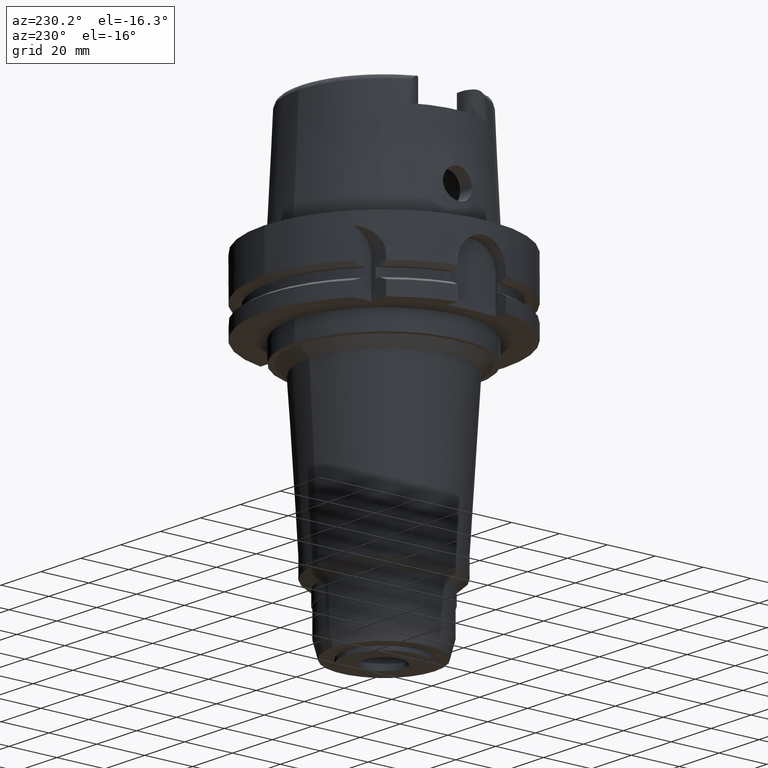
[diagram: clean part render]
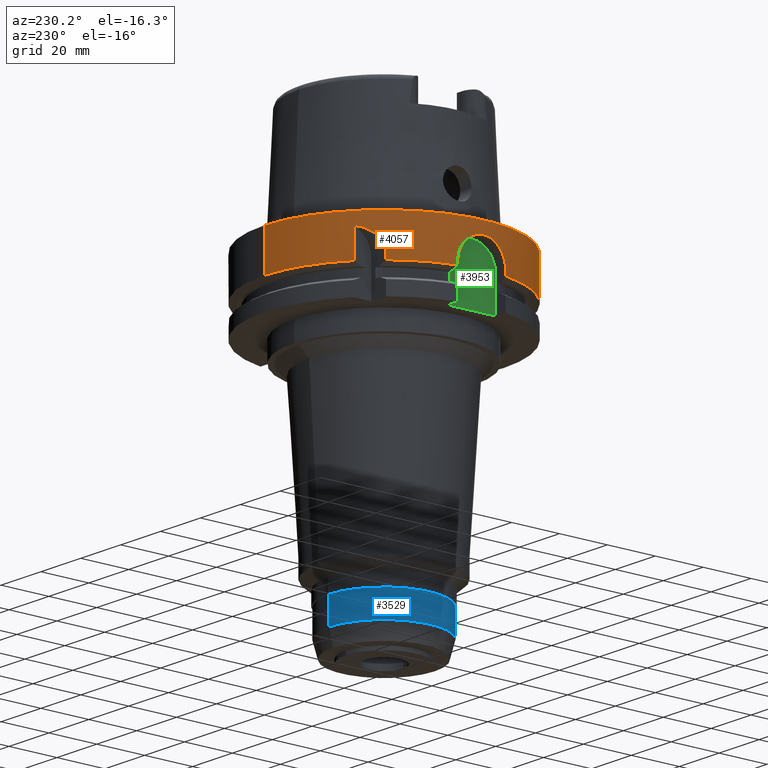
[diagram: same view with three faces highlighted in distinct colors, each labeled with its STEP entity id]
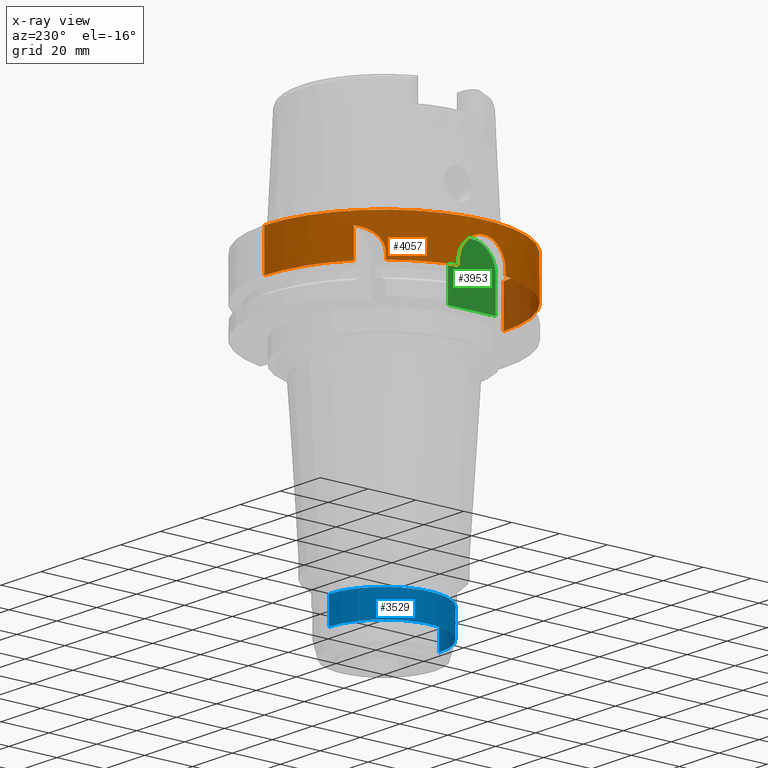
[diagram: x-ray of the same camera — body ghosted, the three highlighted faces saturated]
A machine part, auxiliary view with three faces highlighted in distinct colors.
The next image is the same camera in x-ray (body ghosted, the three faces saturated) — at least one of them is partly hidden behind the body in this view.
Their STEP definitions:

[orange] entity #4057 — the highlighted cylindrical surface (partial cylindrical patch) has radius 50 mm, axis along (0, 0, 1).
#1443=CARTESIAN_POINT('',(-3.150000355959E1,3.882975374305E1,
-1.675239179145E1));
#1628=CARTESIAN_POINT('',(-3.882975730068E1,3.149999917413E1,
-1.675240773890E1));
#1652=DIRECTION('',(-3.028823767049E-7,-2.457085509676E-7,-9.999999999999E-1));
#1653=VECTOR('',#1652,1.175239179145E1);
#1654=CARTESIAN_POINT('',(-3.15E1,3.882975663071E1,-5.000000000003E0));
#1655=LINE('',#1654,#1653);
#1659=DIRECTION('',(0.E0,2.969006079282E-14,-1.E0));
#1660=VECTOR('',#1659,1.675240473581E1);
#1661=CARTESIAN_POINT('',(0.E0,-5.E1,2.463214817302E-13));
#1662=LINE('',#1661,#1660);
#1666=DIRECTION('',(3.933032361779E-13,-2.534170336198E-14,1.E0));
#1667=VECTOR('',#1666,1.752404735809E0);
#1668=CARTESIAN_POINT('',(-4.898979485566E1,-1.E1,-1.675240473581E1));
#1669=LINE('',#1668,#1667);
#1673=DIRECTION('',(-4.014125812538E-13,-2.635537149646E-14,-1.E0));
#1674=VECTOR('',#1673,1.752404735809E0);
#1675=CARTESIAN_POINT('',(-4.898979485566E1,1.E1,-1.5E1));
#1676=LINE('',#1675,#1674);
#1680=DIRECTION('',(3.166955095345E-7,3.903884141555E-7,9.999999999999E-1));
#1681=VECTOR('',#1680,2.115509879686E0);
#1682=CARTESIAN_POINT('',(-3.882975730068E1,3.149999917413E1,
-1.675240773890E1));
#1683=LINE('',#1682,#1681);
#1687=CARTESIAN_POINT('',(-3.882975663071E1,3.15E1,-1.463689785921E1));
#1688=CARTESIAN_POINT('',(-3.882975663071E1,3.15E1,-1.433064616803E1));
#1689=CARTESIAN_POINT('',(-3.880705422976E1,3.152801625389E1,
-1.372017333441E1));
#1690=CARTESIAN_POINT('',(-3.870428885498E1,3.165427416487E1,
-1.280789796632E1));
#1691=CARTESIAN_POINT('',(-3.853135160626E1,3.186487466080E1,
-1.190702947007E1));
#1692=CARTESIAN_POINT('',(-3.828481064571E1,3.216112139059E1,
-1.102040384079E1));
#1693=CARTESIAN_POINT('',(-3.796154875255E1,3.254265071697E1,
-1.015735258719E1));
#1694=CARTESIAN_POINT('',(-3.755549775618E1,3.301119515243E1,
-9.321662301873E0));
#1695=CARTESIAN_POINT('',(-3.705885492166E1,3.356872838146E1,
-8.519828888380E0));
#1696=CARTESIAN_POINT('',(-3.646394592804E1,3.421519580382E1,
-7.761523281615E0));
#1697=CARTESIAN_POINT('',(-3.575809827878E1,3.495362824472E1,
-7.053893448163E0));
#1698=CARTESIAN_POINT('',(-3.493062109823E1,3.578229936867E1,
-6.409707493797E0));
#1699=CARTESIAN_POINT('',(-3.396221594085E1,3.670477659820E1,
-5.838585168142E0));
#1700=CARTESIAN_POINT('',(-3.283745498365E1,3.771686812440E1,
-5.356688261276E0));
#1701=CARTESIAN_POINT('',(-3.196702760883E1,3.845088818150E1,
-5.104978902875E0));
#1702=CARTESIAN_POINT('',(-3.15E1,3.882975663071E1,-5.000000000003E0));
#1725=CARTESIAN_POINT('',(0.E0,0.E0,-1.675240473581E1));
#1726=DIRECTION('',(0.E0,0.E0,1.E0));
#1727=DIRECTION('',(0.E0,1.E0,0.E0));
#1728=AXIS2_PLACEMENT_3D('',#1725,#1726,#1727);
#1882=DIRECTION('',(0.E0,-2.969006079282E-14,-1.E0));
#1883=VECTOR('',#1882,1.675240473581E1);
#1884=CARTESIAN_POINT('',(0.E0,5.E1,2.463214817302E-13));
#1885=LINE('',#1884,#1883);
#1956=CARTESIAN_POINT('',(0.E0,0.E0,-1.675240473581E1));
#1957=DIRECTION('',(0.E0,0.E0,1.E0));
#1958=DIRECTION('',(-9.797958971133E-1,-2.E-1,0.E0));
#1959=AXIS2_PLACEMENT_3D('',#1956,#1957,#1958);
#2110=CARTESIAN_POINT('',(0.E0,0.E0,3.979039320257E-13));
#2111=DIRECTION('',(0.E0,0.E0,-1.E0));
#2112=DIRECTION('',(0.E0,-1.E0,0.E0));
#2113=AXIS2_PLACEMENT_3D('',#2110,#2111,#2112);
#2142=CARTESIAN_POINT('',(-4.898979485566E1,1.E1,-1.5E1));
#2143=CARTESIAN_POINT('',(-4.898979485566E1,1.E1,-1.426108339054E1));
#2144=CARTESIAN_POINT('',(-4.902380397178E1,9.835573181094E0,
-1.277773796763E1));
#2145=CARTESIAN_POINT('',(-4.916882506048E1,9.096390976149E0,
-1.064602762518E1));
#2146=CARTESIAN_POINT('',(-4.938004913442E1,7.892536922877E0,
-8.720777334135E0));
#2147=CARTESIAN_POINT('',(-4.961472990510E1,6.281193322608E0,
-7.108977901554E0));
#2148=CARTESIAN_POINT('',(-4.982397989539E1,4.355986646181E0,
-5.904662998032E0));
#2149=CARTESIAN_POINT('',(-4.996651786455E1,2.226278022806E0,
-5.165424488103E0));
#2150=CARTESIAN_POINT('',(-5.001677347920E1,-1.478587465985E-3,
-4.917124513237E0));
#2151=CARTESIAN_POINT('',(-4.996638810610E1,-2.229127438262E0,
-5.166078098978E0));
#2152=CARTESIAN_POINT('',(-4.982375143674E1,-4.358568224988E0,
-5.905888858995E0));
#2153=CARTESIAN_POINT('',(-4.961443094386E1,-6.283534592862E0,
-7.110860296476E0));
#2154=CARTESIAN_POINT('',(-4.937976574419E1,-7.894254858082E0,
-8.722905111691E0));
#2155=CARTESIAN_POINT('',(-4.916856876748E1,-9.097827969051E0,
-1.064902048529E1));
#2156=CARTESIAN_POINT('',(-4.902370122882E1,-9.835971298666E0,
-1.278006468368E1));
#2157=CARTESIAN_POINT('',(-4.898979485566E1,-1.E1,-1.426200339765E1));
#2158=CARTESIAN_POINT('',(-4.898979485566E1,-1.E1,-1.5E1));
#2177=CARTESIAN_POINT('',(0.E0,0.E0,-1.675240473581E1));
#2178=DIRECTION('',(0.E0,0.E0,1.E0));
#2179=DIRECTION('',(-7.765951326142E-1,6.3E-1,0.E0));
#2180=AXIS2_PLACEMENT_3D('',#2177,#2178,#2179);
#2185=CARTESIAN_POINT('',(-4.898979485566E1,1.E1,-1.675240473581E1));
#2607=VERTEX_POINT('',#1443);
#2608=CARTESIAN_POINT('',(-3.15E1,3.882975663071E1,-5.000000000003E0));
#2609=VERTEX_POINT('',#2608);
#2628=CARTESIAN_POINT('',(-4.898979485566E1,-1.E1,-1.5E1));
#2629=VERTEX_POINT('',#2628);
#2630=CARTESIAN_POINT('',(-4.898979485566E1,-1.E1,-1.675240473581E1));
#2631=VERTEX_POINT('',#2630);
#2650=VERTEX_POINT('',#2185);
#2651=CARTESIAN_POINT('',(-4.898979485566E1,1.E1,-1.5E1));
#2652=VERTEX_POINT('',#2651);
#2691=CARTESIAN_POINT('',(0.E0,-5.E1,-1.675240473581E1));
#2692=VERTEX_POINT('',#2691);
#2696=CARTESIAN_POINT('',(0.E0,5.E1,-1.675240473581E1));
#2697=VERTEX_POINT('',#2696);
#2698=VERTEX_POINT('',#1628);
#2699=CARTESIAN_POINT('',(0.E0,5.E1,2.463214817302E-13));
#2700=VERTEX_POINT('',#2699);
#2701=CARTESIAN_POINT('',(0.E0,-5.E1,3.979039320257E-13));
#2702=VERTEX_POINT('',#2701);
#2703=CARTESIAN_POINT('',(-3.882975663071E1,3.15E1,-1.463689785921E1));
#2704=VERTEX_POINT('',#2703);
#4031=CARTESIAN_POINT('',(0.E0,0.E0,-1.4677E2));
#4032=DIRECTION('',(0.E0,0.E0,1.E0));
#4033=DIRECTION('',(0.E0,1.E0,0.E0));
#4034=AXIS2_PLACEMENT_3D('',#4031,#4032,#4033);
#4035=CYLINDRICAL_SURFACE('',#4034,5.E1);
#4036=ORIENTED_EDGE('',*,*,#3799,.T.);
#4038=ORIENTED_EDGE('',*,*,#4037,.F.);
#4040=ORIENTED_EDGE('',*,*,#4039,.F.);
#4042=ORIENTED_EDGE('',*,*,#4041,.F.);
#4044=ORIENTED_EDGE('',*,*,#4043,.T.);
#4046=ORIENTED_EDGE('',*,*,#4045,.F.);
#4047=ORIENTED_EDGE('',*,*,#3922,.T.);
#4049=ORIENTED_EDGE('',*,*,#4048,.F.);
#4050=ORIENTED_EDGE('',*,*,#3972,.T.);
#4052=ORIENTED_EDGE('',*,*,#4051,.F.);
#4053=ORIENTED_EDGE('',*,*,#4003,.T.);
#4054=ORIENTED_EDGE('',*,*,#4024,.T.);
#4055=EDGE_LOOP('',(#4036,#4038,#4040,#4042,#4044,#4046,#4047,#4049,#4050,#4052,
#4053,#4054));
#4056=FACE_OUTER_BOUND('',#4055,.F.);
#1703=B_SPLINE_CURVE_WITH_KNOTS('',3,(#1687,#1688,#1689,#1690,#1691,#1692,#1693,
#1694,#1695,#1696,#1697,#1698,#1699,#1700,#1701,#1702),.UNSPECIFIED.,.F.,.F.,(4,
1,1,1,1,1,1,1,1,1,1,1,1,4),(0.E0,7.692307692308E-2,1.538461538462E-1,
2.307692307692E-1,3.076923076923E-1,3.846153846154E-1,4.615384615385E-1,
5.384615384615E-1,6.153846153846E-1,6.923076923077E-1,7.692307692308E-1,
8.461538461538E-1,9.230769230769E-1,1.E0),.UNSPECIFIED.);
#1729=CIRCLE('',#1728,5.E1);
#1960=CIRCLE('',#1959,5.E1);
#2114=CIRCLE('',#2113,5.E1);
#2159=B_SPLINE_CURVE_WITH_KNOTS('',3,(#2142,#2143,#2144,#2145,#2146,#2147,#2148,
#2149,#2150,#2151,#2152,#2153,#2154,#2155,#2156,#2157,#2158),.UNSPECIFIED.,.F.,
.F.,(4,1,1,1,1,1,1,1,1,1,1,1,1,1,4),(0.E0,7.142857142857E-2,1.428571428571E-1,
2.142857142857E-1,2.857142857143E-1,3.571428571429E-1,4.285714285714E-1,5.E-1,
5.714285714286E-1,6.428571428571E-1,7.142857142857E-1,7.857142857143E-1,
8.571428571429E-1,9.285714285714E-1,1.E0),.UNSPECIFIED.);
#2181=CIRCLE('',#2180,5.E1);
#3799=EDGE_CURVE('',#2609,#2607,#1655,.T.);
#3922=EDGE_CURVE('',#2631,#2629,#1669,.T.);
#3972=EDGE_CURVE('',#2652,#2650,#1676,.T.);
#4003=EDGE_CURVE('',#2698,#2704,#1683,.T.);
#4024=EDGE_CURVE('',#2704,#2609,#1703,.T.);
#4037=EDGE_CURVE('',#2697,#2607,#1729,.T.);
#4039=EDGE_CURVE('',#2700,#2697,#1885,.T.);
#4041=EDGE_CURVE('',#2702,#2700,#2114,.T.);
#4043=EDGE_CURVE('',#2702,#2692,#1662,.T.);
#4045=EDGE_CURVE('',#2631,#2692,#1960,.T.);
#4048=EDGE_CURVE('',#2652,#2629,#2159,.T.);
#4051=EDGE_CURVE('',#2698,#2650,#2181,.T.);
#4057=ADVANCED_FACE('',(#4056),#4035,.T.);

[blue] entity #3529 — the highlighted cylindrical surface (partial cylindrical patch) has radius 23 mm, axis along (0, 0, 1).
#1106=CARTESIAN_POINT('',(0.E0,0.E0,-1.292E2));
#1107=DIRECTION('',(0.E0,0.E0,1.E0));
#1108=DIRECTION('',(0.E0,1.E0,0.E0));
#1109=AXIS2_PLACEMENT_3D('',#1106,#1107,#1108);
#1121=DIRECTION('',(0.E0,-1.157076473371E-13,-1.E0));
#1122=VECTOR('',#1121,1.09E1);
#1123=CARTESIAN_POINT('',(0.E0,-2.3E1,-1.183E2));
#1124=LINE('',#1123,#1122);
#1128=DIRECTION('',(0.E0,1.157076473371E-13,-1.E0));
#1129=VECTOR('',#1128,1.09E1);
#1130=CARTESIAN_POINT('',(0.E0,2.3E1,-1.183E2));
#1131=LINE('',#1130,#1129);
#1151=CARTESIAN_POINT('',(0.E0,0.E0,-1.183E2));
#1152=DIRECTION('',(0.E0,0.E0,-1.E0));
#1153=DIRECTION('',(0.E0,-1.E0,0.E0));
#1154=AXIS2_PLACEMENT_3D('',#1151,#1152,#1153);
#2532=CARTESIAN_POINT('',(0.E0,2.3E1,-1.292E2));
#2533=VERTEX_POINT('',#2532);
#2534=CARTESIAN_POINT('',(0.E0,-2.3E1,-1.292E2));
#2535=VERTEX_POINT('',#2534);
#2536=CARTESIAN_POINT('',(0.E0,2.3E1,-1.183E2));
#2537=VERTEX_POINT('',#2536);
#2538=CARTESIAN_POINT('',(0.E0,-2.3E1,-1.183E2));
#2539=VERTEX_POINT('',#2538);
#3515=CARTESIAN_POINT('',(0.E0,0.E0,-1.4677E2));
#3516=DIRECTION('',(0.E0,0.E0,1.E0));
#3517=DIRECTION('',(0.E0,1.E0,0.E0));
#3518=AXIS2_PLACEMENT_3D('',#3515,#3516,#3517);
#3519=CYLINDRICAL_SURFACE('',#3518,2.3E1);
#3521=ORIENTED_EDGE('',*,*,#3520,.F.);
#3523=ORIENTED_EDGE('',*,*,#3522,.F.);
#3525=ORIENTED_EDGE('',*,*,#3524,.T.);
#3526=ORIENTED_EDGE('',*,*,#3508,.F.);
#3527=EDGE_LOOP('',(#3521,#3523,#3525,#3526));
#3528=FACE_OUTER_BOUND('',#3527,.F.);
#1110=CIRCLE('',#1109,2.3E1);
#1155=CIRCLE('',#1154,2.3E1);
#3508=EDGE_CURVE('',#2533,#2535,#1110,.T.);
#3520=EDGE_CURVE('',#2537,#2533,#1131,.T.);
#3522=EDGE_CURVE('',#2539,#2537,#1155,.T.);
#3524=EDGE_CURVE('',#2539,#2535,#1124,.T.);
#3529=ADVANCED_FACE('',(#3528),#3519,.T.);

[green] entity #3953 — the highlighted planar face has unit normal (1, 0, 0).
#1549=DIRECTION('',(0.E0,0.E0,1.E0));
#1550=VECTOR('',#1549,1.4E1);
#1551=CARTESIAN_POINT('',(-4.4E1,-1.E1,-2.9E1));
#1552=LINE('',#1551,#1550);
#1563=DIRECTION('',(0.E0,1.E0,0.E0));
#1564=VECTOR('',#1563,2.E1);
#1565=CARTESIAN_POINT('',(-4.4E1,-1.E1,-2.9E1));
#1566=LINE('',#1565,#1564);
#1570=CARTESIAN_POINT('',(-4.4E1,0.E0,-1.5E1));
#1571=DIRECTION('',(1.E0,0.E0,0.E0));
#1572=DIRECTION('',(0.E0,1.E0,0.E0));
#1573=AXIS2_PLACEMENT_3D('',#1570,#1571,#1572);
#1578=CARTESIAN_POINT('',(-4.4E1,0.E0,-1.5E1));
#1579=DIRECTION('',(1.E0,0.E0,0.E0));
#1580=DIRECTION('',(0.E0,0.E0,1.E0));
#1581=AXIS2_PLACEMENT_3D('',#1578,#1579,#1580);
#1600=DIRECTION('',(0.E0,0.E0,-1.E0));
#1601=VECTOR('',#1600,1.4E1);
#1602=CARTESIAN_POINT('',(-4.4E1,1.E1,-1.5E1));
#1603=LINE('',#1602,#1601);
#2580=CARTESIAN_POINT('',(-4.4E1,1.E1,-2.9E1));
#2581=VERTEX_POINT('',#2580);
#2582=CARTESIAN_POINT('',(-4.4E1,-1.E1,-2.9E1));
#2583=VERTEX_POINT('',#2582);
#2626=CARTESIAN_POINT('',(-4.4E1,-1.E1,-1.5E1));
#2627=VERTEX_POINT('',#2626);
#2639=CARTESIAN_POINT('',(-4.4E1,1.E1,-1.5E1));
#2640=VERTEX_POINT('',#2639);
#2641=CARTESIAN_POINT('',(-4.4E1,0.E0,-5.E0));
#2642=VERTEX_POINT('',#2641);
#3938=CARTESIAN_POINT('',(-4.4E1,0.E0,0.E0));
#3939=DIRECTION('',(1.E0,0.E0,0.E0));
#3940=DIRECTION('',(0.E0,0.E0,1.E0));
#3941=AXIS2_PLACEMENT_3D('',#3938,#3939,#3940);
#3942=PLANE('',#3941);
#3943=ORIENTED_EDGE('',*,*,#3756,.T.);
#3945=ORIENTED_EDGE('',*,*,#3944,.F.);
#3947=ORIENTED_EDGE('',*,*,#3946,.T.);
#3949=ORIENTED_EDGE('',*,*,#3948,.T.);
#3950=ORIENTED_EDGE('',*,*,#3918,.F.);
#3951=EDGE_LOOP('',(#3943,#3945,#3947,#3949,#3950));
#3952=FACE_OUTER_BOUND('',#3951,.F.);
#1574=CIRCLE('',#1573,1.E1);
#1582=CIRCLE('',#1581,1.E1);
#3756=EDGE_CURVE('',#2583,#2581,#1566,.T.);
#3918=EDGE_CURVE('',#2583,#2627,#1552,.T.);
#3944=EDGE_CURVE('',#2640,#2581,#1603,.T.);
#3946=EDGE_CURVE('',#2640,#2642,#1574,.T.);
#3948=EDGE_CURVE('',#2642,#2627,#1582,.T.);
#3953=ADVANCED_FACE('',(#3952),#3942,.F.);